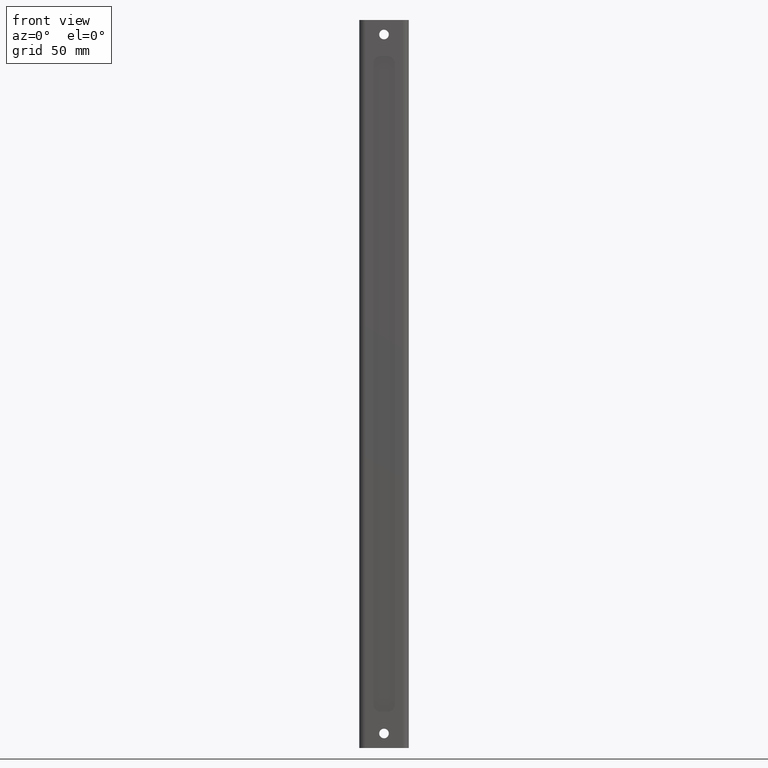
[diagram: clean part render]
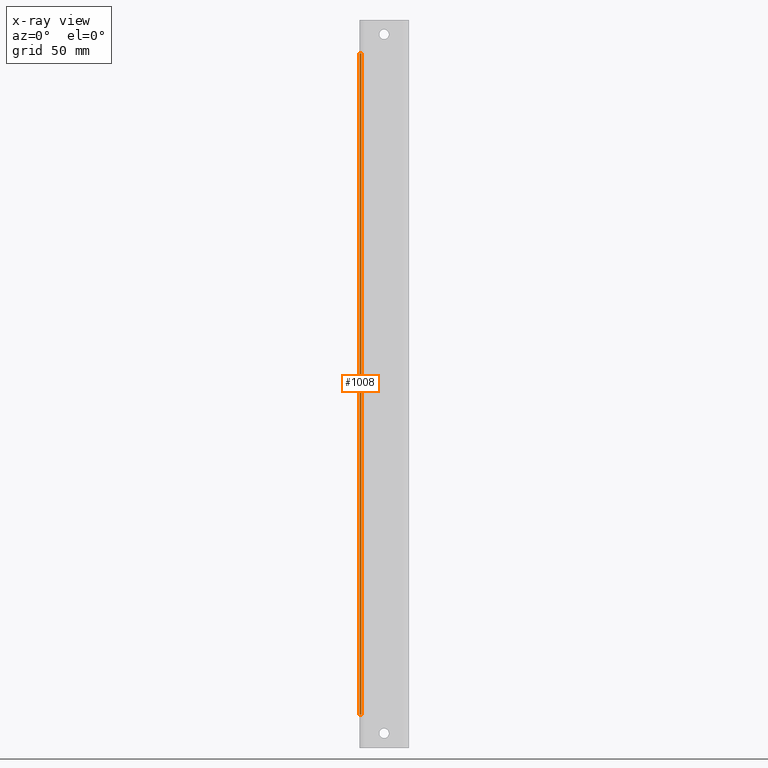
[diagram: x-ray — body ghosted, one internal face saturated and labeled with its STEP entity id]
A machine part, front view, then the same camera in x-ray: the body is ghosted and one INTERNAL B-rep face — a face not visible from any outside direction — is saturated and labeled: STEP entity #1008.
In plain terms, the highlighted planar face has unit normal (-0, 1, 0).
Its self-contained STEP definition (entity closure, byte-faithful):
#53=LINE('',#1597,#141);
#80=LINE('',#1691,#168);
#85=LINE('',#1705,#173);
#86=LINE('',#1707,#174);
#141=VECTOR('',#1265,1000.);
#168=VECTOR('',#1372,1000.);
#173=VECTOR('',#1389,1000.);
#174=VECTOR('',#1392,1000.);
#214=PLANE('',#1126);
#409=ORIENTED_EDGE('',*,*,#571,.F.);
#410=ORIENTED_EDGE('',*,*,#626,.T.);
#411=ORIENTED_EDGE('',*,*,#619,.T.);
#412=ORIENTED_EDGE('',*,*,#627,.T.);
#571=EDGE_CURVE('',#710,#711,#53,.T.);
#619=EDGE_CURVE('',#738,#737,#80,.T.);
#626=EDGE_CURVE('',#710,#738,#85,.T.);
#627=EDGE_CURVE('',#737,#711,#86,.T.);
#710=VERTEX_POINT('',#1596);
#711=VERTEX_POINT('',#1598);
#737=VERTEX_POINT('',#1690);
#738=VERTEX_POINT('',#1692);
#855=EDGE_LOOP('',(#409,#410,#411,#412));
#923=FACE_BOUND('',#855,.T.);
#1008=ADVANCED_FACE('',(#923),#214,.T.);
#1126=AXIS2_PLACEMENT_3D('',#1706,#1390,#1391);
#1265=DIRECTION('',(3.32185076179638E-17,-1.66533453693773E-16,1.));
#1372=DIRECTION('',(3.32185076179638E-17,-1.66533453693773E-16,1.));
#1389=DIRECTION('',(-1.,-3.08531750618206E-15,-8.93686180177308E-17));
#1390=DIRECTION('',(-3.08531750618206E-15,1.,1.66533453693773E-16));
#1391=DIRECTION('',(-1.,-3.08531750618206E-15,-8.93686180177308E-17));
#1392=DIRECTION('',(1.,3.08531750618206E-15,8.93686180177308E-17));
#1596=CARTESIAN_POINT('',(-15.5000000000001,-0.0130367319024754,-227.));
#1597=CARTESIAN_POINT('',(-15.5000000000002,-0.0130367319027391,-1.61189195655466E-16));
#1598=CARTESIAN_POINT('',(-15.5000000000002,-0.0130367319027769,227.));
#1690=CARTESIAN_POINT('',(-17.0000000000001,-0.0130367319027769,227.));
#1691=CARTESIAN_POINT('',(-17.0000000000001,-0.0130367319028015,375.));
#1692=CARTESIAN_POINT('',(-17.0000000000001,-0.0130367319024754,-227.));
#1705=CARTESIAN_POINT('',(-11.5000000000002,-0.0130367319024025,-227.));
#1706=CARTESIAN_POINT('',(-11.5000000000002,-0.0130367319027287,375.));
#1707=CARTESIAN_POINT('',(-10.0000000000002,-0.0130367319026835,227.));